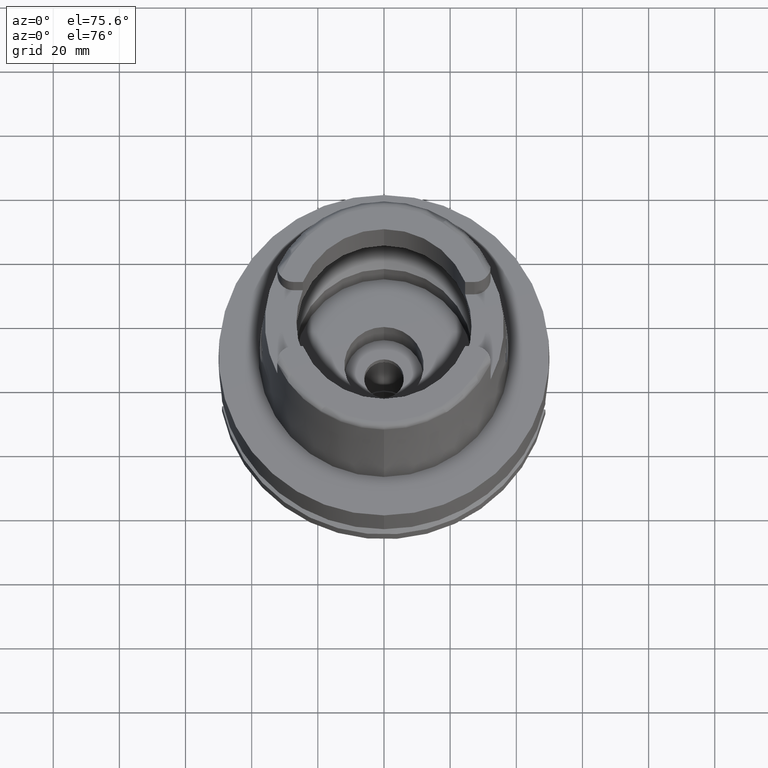
[diagram: clean part render]
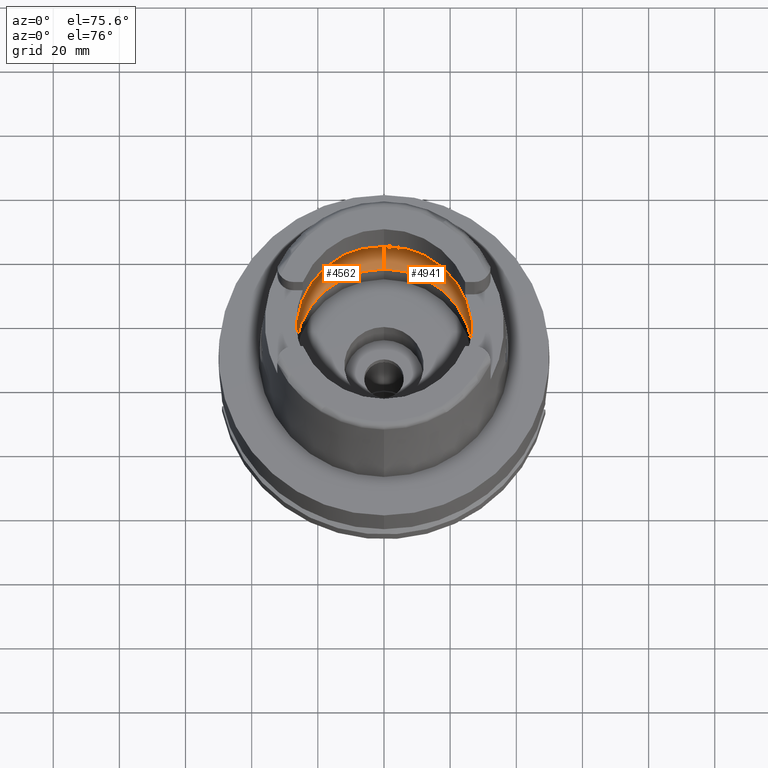
[diagram: same view with one multi-face feature highlighted, each face labeled with its STEP entity id]
A machine part, auxiliary view. The highlighted faces form ONE feature: a constant-radius fillet chain: 2 tangent blend faces with common blend radius 12 mm. The faces share edges in the B-rep.
Their STEP definitions:
[1] entity #4562 (Torus):
#22 = VERTEX_POINT ( 'NONE', #5082 ) ;
#144 = DIRECTION ( 'NONE',  ( 0.0000000000000000000, -0.6166666666667049990, -0.7872243785746061429 ) ) ;
#203 = CARTESIAN_POINT ( 'NONE',  ( -31.40918884336000616, 2.390158196043999705, 9.496624327025999790 ) ) ;
#211 = DIRECTION ( 'NONE',  ( 0.0000000000000000000, 1.000000000000000000, 0.0000000000000000000 ) ) ;
#272 = EDGE_CURVE ( 'NONE', #4645, #4062, #1833, .T. ) ;
#457 = VERTEX_POINT ( 'NONE', #4228 ) ;
#547 = CARTESIAN_POINT ( 'NONE',  ( 0.0000000000000000000, 31.50000000000000000, 9.496624327025999790 ) ) ;
#549 = CARTESIAN_POINT ( 'NONE',  ( 0.0000000000000000000, -26.89999999999999858, 0.04993178413032000468 ) ) ;
#662 = CARTESIAN_POINT ( 'NONE',  ( -31.48971910754000447, 0.8697454016785111097, 9.000000000000001776 ) ) ;
#672 = CARTESIAN_POINT ( 'NONE',  ( 0.0000000000000000000, 0.0000000000000000000, 9.496624327025999790 ) ) ;
#695 = CARTESIAN_POINT ( 'NONE',  ( 0.0000000000000000000, 0.0000000000000000000, 9.496624327025999790 ) ) ;
#773 = CARTESIAN_POINT ( 'NONE',  ( -31.46287568614665986, -1.684656700029165899, 9.190219625035021878 ) ) ;
#1115 = FACE_OUTER_BOUND ( 'NONE', #3727, .T. ) ;
#1129 = CARTESIAN_POINT ( 'NONE',  ( -31.48971910754000447, 0.0000000000000000000, 9.000000000000000000 ) ) ;
#1136 = ORIENTED_EDGE ( 'NONE', *, *, #2233, .F. ) ;
#1191 = VERTEX_POINT ( 'NONE', #3341 ) ;
#1292 = VERTEX_POINT ( 'NONE', #549 ) ;
#1408 = DIRECTION ( 'NONE',  ( 0.0000000000000000000, 0.0000000000000000000, 1.000000000000000000 ) ) ;
#1471 = CIRCLE ( 'NONE', #5392, 31.50000000000000000 ) ;
#1545 = CARTESIAN_POINT ( 'NONE',  ( -31.40918884336000616, -2.390158196043999705, 9.496624327025999790 ) ) ;
#1560 = TOROIDAL_SURFACE ( 'NONE', #1654, 19.50000000000000000, 12.00000000000000000 ) ;
#1654 = AXIS2_PLACEMENT_3D ( 'NONE', #672, #2777, #211 ) ;
#1670 = DIRECTION ( 'NONE',  ( 0.0000000000000000000, 0.6166666666667049990, -0.7872243785746061429 ) ) ;
#1833 = CIRCLE ( 'NONE', #4162, 31.49999999999998934 ) ;
#1867 = AXIS2_PLACEMENT_3D ( 'NONE', #3973, #1408, #3121 ) ;
#1896 = DIRECTION ( 'NONE',  ( -0.9971171061384295209, 0.07587803796965221503, 0.0000000000000000000 ) ) ;
#2233 = EDGE_CURVE ( 'NONE', #1292, #1191, #2407, .T. ) ;
#2407 = CIRCLE ( 'NONE', #5507, 11.99999999999999822 ) ;
#2419 = DIRECTION ( 'NONE',  ( 0.0000000000000000000, -1.000000000000000000, 0.0000000000000000000 ) ) ;
#2526 = EDGE_CURVE ( 'NONE', #457, #4062, #3486, .T. ) ;
#2528 = ORIENTED_EDGE ( 'NONE', *, *, #3548, .F. ) ;
#2777 = DIRECTION ( 'NONE',  ( 0.0000000000000000000, 0.0000000000000000000, 1.000000000000000000 ) ) ;
#2879 = VERTEX_POINT ( 'NONE', #1129 ) ;
#2906 = EDGE_CURVE ( 'NONE', #22, #2879, #3079, .T. ) ;
#3075 = ORIENTED_EDGE ( 'NONE', *, *, #4860, .F. ) ;
#3079 = B_SPLINE_CURVE_WITH_KNOTS ( 'NONE', 3,
 ( #1545, #773, #4108, #4954 ),
 .UNSPECIFIED., .F., .F.,
 ( 4, 4 ),
 ( 0.0000000000000000000, 1.000000000000000000 ),
 .UNSPECIFIED. ) ;
#3121 = DIRECTION ( 'NONE',  ( 0.0000000000000000000, 1.000000000000000000, 0.0000000000000000000 ) ) ;
#3126 = CIRCLE ( 'NONE', #1867, 26.89999999999999858 ) ;
#3246 = CARTESIAN_POINT ( 'NONE',  ( -31.48971910754000447, 0.0000000000000000000, 9.000000000000000000 ) ) ;
#3329 = B_SPLINE_CURVE_WITH_KNOTS ( 'NONE', 3,
 ( #3246, #662, #4854, #203 ),
 .UNSPECIFIED., .F., .F.,
 ( 4, 4 ),
 ( 0.0000000000000000000, 1.000000000000000000 ),
 .UNSPECIFIED. ) ;
#3341 = CARTESIAN_POINT ( 'NONE',  ( 0.0000000000000000000, -31.50000000000000000, 9.496624327025999790 ) ) ;
#3486 = CIRCLE ( 'NONE', #3650, 11.99999999999999822 ) ;
#3504 = CARTESIAN_POINT ( 'NONE',  ( 0.0000000000000000000, -19.50000000000000000, 9.496624327025999790 ) ) ;
#3548 = EDGE_CURVE ( 'NONE', #457, #1292, #3126, .T. ) ;
#3605 = DIRECTION ( 'NONE',  ( 0.0000000000000000000, 0.0000000000000000000, -1.000000000000000000 ) ) ;
#3650 = AXIS2_PLACEMENT_3D ( 'NONE', #5073, #4286, #1670 ) ;
#3727 = EDGE_LOOP ( 'NONE', ( #3841, #1136, #2528, #3963, #3753, #3075, #3799 ) ) ;
#3753 = ORIENTED_EDGE ( 'NONE', *, *, #272, .F. ) ;
#3799 = ORIENTED_EDGE ( 'NONE', *, *, #2906, .F. ) ;
#3841 = ORIENTED_EDGE ( 'NONE', *, *, #4491, .F. ) ;
#3864 = CARTESIAN_POINT ( 'NONE',  ( -31.40918884336000616, 2.390158196043999705, 9.496624327025999790 ) ) ;
#3963 = ORIENTED_EDGE ( 'NONE', *, *, #2526, .T. ) ;
#3973 = CARTESIAN_POINT ( 'NONE',  ( 0.0000000000000000000, 0.0000000000000000000, 0.04993178413032000468 ) ) ;
#4062 = VERTEX_POINT ( 'NONE', #547 ) ;
#4108 = CARTESIAN_POINT ( 'NONE',  ( -31.48971910754000447, -0.8697454018008697885, 8.999999999999998224 ) ) ;
#4162 = AXIS2_PLACEMENT_3D ( 'NONE', #695, #3605, #1896 ) ;
#4228 = CARTESIAN_POINT ( 'NONE',  ( 0.0000000000000000000, 26.89999999999999858, 0.04993178413033000362 ) ) ;
#4286 = DIRECTION ( 'NONE',  ( 1.000000000000000000, 0.0000000000000000000, 0.0000000000000000000 ) ) ;
#4491 = EDGE_CURVE ( 'NONE', #1191, #22, #1471, .T. ) ;
#4537 = DIRECTION ( 'NONE',  ( 0.0000000000000000000, 0.0000000000000000000, -1.000000000000000000 ) ) ;
#4562 = ADVANCED_FACE ( 'NONE', ( #1115 ), #1560, .F. ) ;
#4645 = VERTEX_POINT ( 'NONE', #3864 ) ;
#4781 = DIRECTION ( 'NONE',  ( -1.000000000000000000, 0.0000000000000000000, 0.0000000000000000000 ) ) ;
#4854 = CARTESIAN_POINT ( 'NONE',  ( -31.46287568614665986, 1.684656699916923683, 9.190219624986275093 ) ) ;
#4860 = EDGE_CURVE ( 'NONE', #2879, #4645, #3329, .T. ) ;
#4944 = CARTESIAN_POINT ( 'NONE',  ( 0.0000000000000000000, 0.0000000000000000000, 9.496624327025999790 ) ) ;
#4954 = CARTESIAN_POINT ( 'NONE',  ( -31.48971910754000447, 0.0000000000000000000, 9.000000000000000000 ) ) ;
#5073 = CARTESIAN_POINT ( 'NONE',  ( 0.0000000000000000000, 19.50000000000000000, 9.496624327025999790 ) ) ;
#5082 = CARTESIAN_POINT ( 'NONE',  ( -31.40918884336000616, -2.390158196043999705, 9.496624327025999790 ) ) ;
#5392 = AXIS2_PLACEMENT_3D ( 'NONE', #4944, #4537, #2419 ) ;
#5507 = AXIS2_PLACEMENT_3D ( 'NONE', #3504, #4781, #144 ) ;
[2] entity #4941 (Torus):
#41 = AXIS2_PLACEMENT_3D ( 'NONE', #4032, #3611, #2723 ) ;
#124 = CIRCLE ( 'NONE', #3018, 26.89999999999999858 ) ;
#125 = CARTESIAN_POINT ( 'NONE',  ( 31.48971910754000447, 0.0000000000000000000, 9.000000000000000000 ) ) ;
#144 = DIRECTION ( 'NONE',  ( 0.0000000000000000000, -0.6166666666667049990, -0.7872243785746061429 ) ) ;
#259 = CARTESIAN_POINT ( 'NONE',  ( 31.40918884336000616, -2.390158196043999705, 9.496624327025999790 ) ) ;
#266 = EDGE_CURVE ( 'NONE', #1116, #5353, #569, .T. ) ;
#457 = VERTEX_POINT ( 'NONE', #4228 ) ;
#547 = CARTESIAN_POINT ( 'NONE',  ( 0.0000000000000000000, 31.50000000000000000, 9.496624327025999790 ) ) ;
#549 = CARTESIAN_POINT ( 'NONE',  ( 0.0000000000000000000, -26.89999999999999858, 0.04993178413032000468 ) ) ;
#569 = B_SPLINE_CURVE_WITH_KNOTS ( 'NONE', 3,
 ( #608, #2414, #4113, #259 ),
 .UNSPECIFIED., .F., .F.,
 ( 4, 4 ),
 ( 0.0000000000000000000, 1.000000000000000000 ),
 .UNSPECIFIED. ) ;
#599 = AXIS2_PLACEMENT_3D ( 'NONE', #1879, #5275, #3165 ) ;
#608 = CARTESIAN_POINT ( 'NONE',  ( 31.48971910754000447, 0.0000000000000000000, 9.000000000000000000 ) ) ;
#791 = CIRCLE ( 'NONE', #599, 31.50000000000000000 ) ;
#949 = CIRCLE ( 'NONE', #41, 31.49999999999998934 ) ;
#972 = CARTESIAN_POINT ( 'NONE',  ( 0.0000000000000000000, 0.0000000000000000000, 0.04993178413033000362 ) ) ;
#1005 = CARTESIAN_POINT ( 'NONE',  ( 31.48971910753999026, 0.8697454017787721314, 9.000000000000001776 ) ) ;
#1116 = VERTEX_POINT ( 'NONE', #4239 ) ;
#1191 = VERTEX_POINT ( 'NONE', #3341 ) ;
#1292 = VERTEX_POINT ( 'NONE', #549 ) ;
#1537 = ORIENTED_EDGE ( 'NONE', *, *, #5367, .F. ) ;
#1670 = DIRECTION ( 'NONE',  ( 0.0000000000000000000, 0.6166666666667049990, -0.7872243785746061429 ) ) ;
#1879 = CARTESIAN_POINT ( 'NONE',  ( 0.0000000000000000000, 0.0000000000000000000, 9.496624327025999790 ) ) ;
#1898 = EDGE_CURVE ( 'NONE', #4062, #4983, #791, .T. ) ;
#2082 = EDGE_LOOP ( 'NONE', ( #2447, #3967, #3502, #1537, #2170, #5378, #2152 ) ) ;
#2152 = ORIENTED_EDGE ( 'NONE', *, *, #266, .F. ) ;
#2170 = ORIENTED_EDGE ( 'NONE', *, *, #2233, .T. ) ;
#2233 = EDGE_CURVE ( 'NONE', #1292, #1191, #2407, .T. ) ;
#2333 = CARTESIAN_POINT ( 'NONE',  ( 31.40918884336000616, 2.390158196043999705, 9.496624327025999790 ) ) ;
#2407 = CIRCLE ( 'NONE', #5507, 11.99999999999999822 ) ;
#2414 = CARTESIAN_POINT ( 'NONE',  ( 31.48971910753999026, -0.8697454017312684638, 8.999999999999998224 ) ) ;
#2442 = CARTESIAN_POINT ( 'NONE',  ( 31.40918884336000616, 2.390158196043999705, 9.496624327025999790 ) ) ;
#2447 = ORIENTED_EDGE ( 'NONE', *, *, #4828, .F. ) ;
#2526 = EDGE_CURVE ( 'NONE', #457, #4062, #3486, .T. ) ;
#2687 = CARTESIAN_POINT ( 'NONE',  ( 31.40918884336000616, -2.390158196043999705, 9.496624327025999790 ) ) ;
#2723 = DIRECTION ( 'NONE',  ( 0.9971171061384295209, -0.07587803796965221503, 0.0000000000000000000 ) ) ;
#2725 = B_SPLINE_CURVE_WITH_KNOTS ( 'NONE', 3,
 ( #2333, #4494, #1005, #125 ),
 .UNSPECIFIED., .F., .F.,
 ( 4, 4 ),
 ( 0.0000000000000000000, 1.000000000000000000 ),
 .UNSPECIFIED. ) ;
#2924 = AXIS2_PLACEMENT_3D ( 'NONE', #4204, #3721, #3775 ) ;
#3018 = AXIS2_PLACEMENT_3D ( 'NONE', #972, #5314, #3621 ) ;
#3165 = DIRECTION ( 'NONE',  ( 0.0000000000000000000, 1.000000000000000000, 0.0000000000000000000 ) ) ;
#3183 = TOROIDAL_SURFACE ( 'NONE', #2924, 19.50000000000000000, 12.00000000000000000 ) ;
#3341 = CARTESIAN_POINT ( 'NONE',  ( 0.0000000000000000000, -31.50000000000000000, 9.496624327025999790 ) ) ;
#3486 = CIRCLE ( 'NONE', #3650, 11.99999999999999822 ) ;
#3502 = ORIENTED_EDGE ( 'NONE', *, *, #2526, .F. ) ;
#3504 = CARTESIAN_POINT ( 'NONE',  ( 0.0000000000000000000, -19.50000000000000000, 9.496624327025999790 ) ) ;
#3611 = DIRECTION ( 'NONE',  ( 0.0000000000000000000, 0.0000000000000000000, -1.000000000000000000 ) ) ;
#3621 = DIRECTION ( 'NONE',  ( 0.0000000000000000000, -1.000000000000000000, 0.0000000000000000000 ) ) ;
#3650 = AXIS2_PLACEMENT_3D ( 'NONE', #5073, #4286, #1670 ) ;
#3721 = DIRECTION ( 'NONE',  ( 0.0000000000000000000, 0.0000000000000000000, 1.000000000000000000 ) ) ;
#3775 = DIRECTION ( 'NONE',  ( 0.0000000000000000000, 1.000000000000000000, 0.0000000000000000000 ) ) ;
#3801 = FACE_OUTER_BOUND ( 'NONE', #2082, .T. ) ;
#3967 = ORIENTED_EDGE ( 'NONE', *, *, #1898, .F. ) ;
#4032 = CARTESIAN_POINT ( 'NONE',  ( 0.0000000000000000000, 0.0000000000000000000, 9.496624327025999790 ) ) ;
#4062 = VERTEX_POINT ( 'NONE', #547 ) ;
#4113 = CARTESIAN_POINT ( 'NONE',  ( 31.46287568614665986, -1.684656699965325632, 9.190219625007294724 ) ) ;
#4204 = CARTESIAN_POINT ( 'NONE',  ( 0.0000000000000000000, 0.0000000000000000000, 9.496624327025999790 ) ) ;
#4228 = CARTESIAN_POINT ( 'NONE',  ( 0.0000000000000000000, 26.89999999999999858, 0.04993178413033000362 ) ) ;
#4239 = CARTESIAN_POINT ( 'NONE',  ( 31.48971910754000447, 0.0000000000000000000, 9.000000000000000000 ) ) ;
#4286 = DIRECTION ( 'NONE',  ( 1.000000000000000000, 0.0000000000000000000, 0.0000000000000000000 ) ) ;
#4494 = CARTESIAN_POINT ( 'NONE',  ( 31.46287568614665986, 1.684656700008886121, 9.190219625026216477 ) ) ;
#4529 = EDGE_CURVE ( 'NONE', #5353, #1191, #949, .T. ) ;
#4781 = DIRECTION ( 'NONE',  ( -1.000000000000000000, 0.0000000000000000000, 0.0000000000000000000 ) ) ;
#4828 = EDGE_CURVE ( 'NONE', #4983, #1116, #2725, .T. ) ;
#4941 = ADVANCED_FACE ( 'NONE', ( #3801 ), #3183, .F. ) ;
#4983 = VERTEX_POINT ( 'NONE', #2442 ) ;
#5073 = CARTESIAN_POINT ( 'NONE',  ( 0.0000000000000000000, 19.50000000000000000, 9.496624327025999790 ) ) ;
#5275 = DIRECTION ( 'NONE',  ( 0.0000000000000000000, 0.0000000000000000000, -1.000000000000000000 ) ) ;
#5314 = DIRECTION ( 'NONE',  ( 0.0000000000000000000, 0.0000000000000000000, 1.000000000000000000 ) ) ;
#5353 = VERTEX_POINT ( 'NONE', #2687 ) ;
#5367 = EDGE_CURVE ( 'NONE', #1292, #457, #124, .T. ) ;
#5378 = ORIENTED_EDGE ( 'NONE', *, *, #4529, .F. ) ;
#5507 = AXIS2_PLACEMENT_3D ( 'NONE', #3504, #4781, #144 ) ;